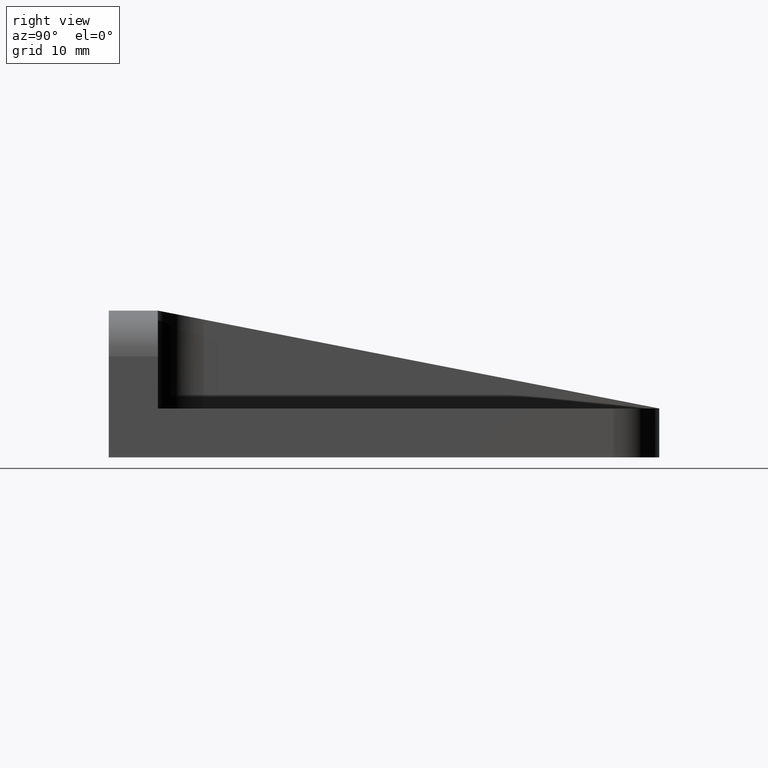
[diagram: clean part render]
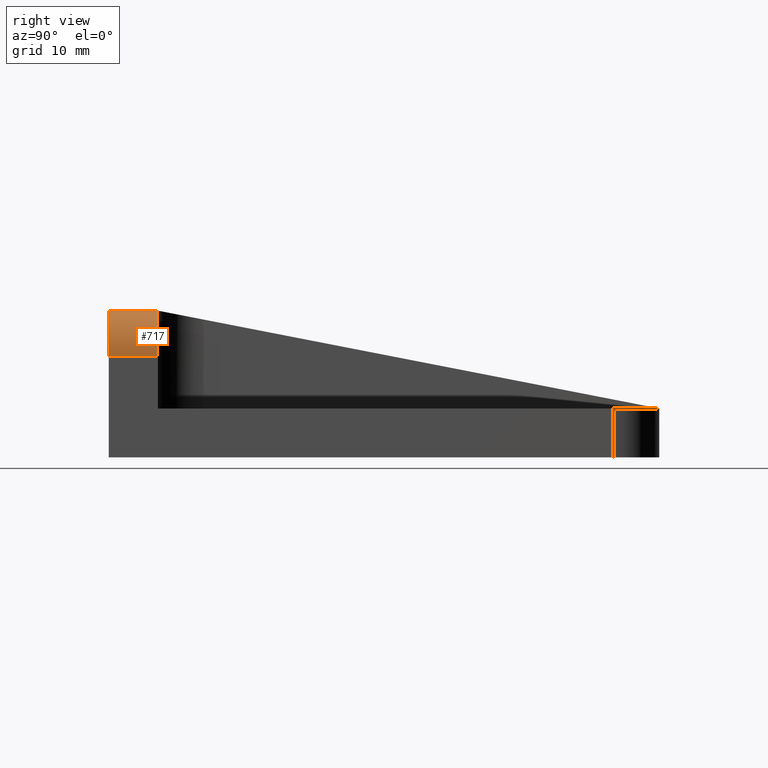
[diagram: same view with one face highlighted and labeled with its STEP entity id]
A machine part, right view. The second image highlights one B-rep face of the part: STEP entity #717.
In plain terms, the highlighted cylindrical surface (partial cylindrical patch) has radius 7.5 mm, axis along (0, -1, 0).
Its self-contained STEP definition (entity closure, byte-faithful):
#14 = CARTESIAN_POINT ( 'NONE',  ( 30.00000000000000000, -2.939152317953647894E-15, 24.00000000000000000 ) ) ;
#22 = EDGE_CURVE ( 'NONE', #817, #787, #84, .T. ) ;
#23 = CARTESIAN_POINT ( 'NONE',  ( 30.00000000000000000, 7.999999999999996447, 16.50000000000000000 ) ) ;
#33 = VERTEX_POINT ( 'NONE', #316 ) ;
#41 = DIRECTION ( 'NONE',  ( 0.0000000000000000000, 0.0000000000000000000, -1.000000000000000000 ) ) ;
#84 = LINE ( 'NONE', #14, #1098 ) ;
#85 = VERTEX_POINT ( 'NONE', #498 ) ;
#99 = DIRECTION ( 'NONE',  ( 0.0000000000000000000, -1.224646799147352961E-16, 1.000000000000000000 ) ) ;
#114 = DIRECTION ( 'NONE',  ( 0.0000000000000000000, -1.000000000000000000, 0.0000000000000000000 ) ) ;
#141 = LINE ( 'NONE', #1156, #150 ) ;
#145 = ORIENTED_EDGE ( 'NONE', *, *, #22, .F. ) ;
#150 = VECTOR ( 'NONE', #114, 1000.000000000000000 ) ;
#154 = CARTESIAN_POINT ( 'NONE',  ( 30.00000000000000000, 0.0000000000000000000, 16.50000000000000000 ) ) ;
#212 = CARTESIAN_POINT ( 'NONE',  ( 30.00000000000000000, -2.939152317953647894E-15, 24.00000000000000000 ) ) ;
#215 = DIRECTION ( 'NONE',  ( 1.000000000000000000, 0.0000000000000000000, 0.0000000000000000000 ) ) ;
#222 = DIRECTION ( 'NONE',  ( 5.178279032766589730E-17, 1.000000000000000000, 0.0000000000000000000 ) ) ;
#249 = CIRCLE ( 'NONE', #946, 7.500000000000000000 ) ;
#279 = DIRECTION ( 'NONE',  ( 0.0000000000000000000, -1.000000000000000000, -1.224646799147353207E-16 ) ) ;
#288 = ORIENTED_EDGE ( 'NONE', *, *, #1031, .F. ) ;
#316 = CARTESIAN_POINT ( 'NONE',  ( 37.50000000000000000, -2.020667218593133100E-15, 16.50000000000000000 ) ) ;
#353 = EDGE_LOOP ( 'NONE', ( #727, #145, #288, #852 ) ) ;
#358 = AXIS2_PLACEMENT_3D ( 'NONE', #154, #1171, #41 ) ;
#433 = CARTESIAN_POINT ( 'NONE',  ( 30.00000000000000000, 7.999999999999996447, 24.00000000000000000 ) ) ;
#498 = CARTESIAN_POINT ( 'NONE',  ( 37.50000000000000000, 7.999999999999996447, 16.50000000000000000 ) ) ;
#600 = FACE_OUTER_BOUND ( 'NONE', #353, .T. ) ;
#717 = ADVANCED_FACE ( 'NONE', ( #600 ), #1181, .T. ) ;
#723 = AXIS2_PLACEMENT_3D ( 'NONE', #23, #222, #215 ) ;
#727 = ORIENTED_EDGE ( 'NONE', *, *, #1095, .F. ) ;
#787 = VERTEX_POINT ( 'NONE', #433 ) ;
#817 = VERTEX_POINT ( 'NONE', #212 ) ;
#833 = CIRCLE ( 'NONE', #723, 7.500000000000000000 ) ;
#850 = DIRECTION ( 'NONE',  ( -0.0000000000000000000, 1.000000000000000000, -0.0000000000000000000 ) ) ;
#852 = ORIENTED_EDGE ( 'NONE', *, *, #1132, .F. ) ;
#946 = AXIS2_PLACEMENT_3D ( 'NONE', #1136, #279, #99 ) ;
#1031 = EDGE_CURVE ( 'NONE', #33, #817, #249, .T. ) ;
#1095 = EDGE_CURVE ( 'NONE', #787, #85, #833, .T. ) ;
#1098 = VECTOR ( 'NONE', #850, 1000.000000000000000 ) ;
#1132 = EDGE_CURVE ( 'NONE', #85, #33, #141, .T. ) ;
#1136 = CARTESIAN_POINT ( 'NONE',  ( 30.00000000000000000, -2.020667218593133100E-15, 16.50000000000000000 ) ) ;
#1156 = CARTESIAN_POINT ( 'NONE',  ( 37.50000000000000000, 0.0000000000000000000, 16.50000000000000000 ) ) ;
#1171 = DIRECTION ( 'NONE',  ( 0.0000000000000000000, -1.000000000000000000, 0.0000000000000000000 ) ) ;
#1181 = CYLINDRICAL_SURFACE ( 'NONE', #358, 7.500000000000000000 ) ;